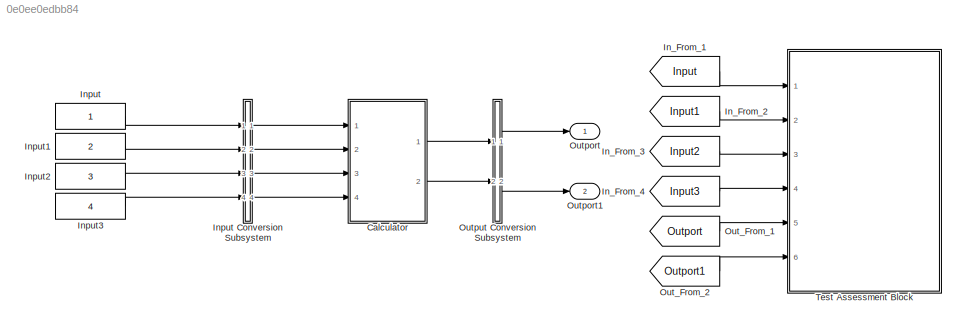
MODEL slx_0e0ee0edbb84
KIND model
BLOCK [ModelReference] Calculator
  ModelNameDialog = Calculator
  ModelReferenceVersion = 1.5
  Ports = [4, 2]
BLOCK [From] In_From_1
  GotoTag = Input
  TagVisibility = global
BLOCK [From] In_From_2
  GotoTag = Input1
  TagVisibility = global
BLOCK [From] In_From_3
  GotoTag = Input2
  TagVisibility = global
BLOCK [From] In_From_4
  GotoTag = Input3
  TagVisibility = global
BLOCK [Constant] Input
  OutDataTypeStr = double
  SampleTime = 0.01
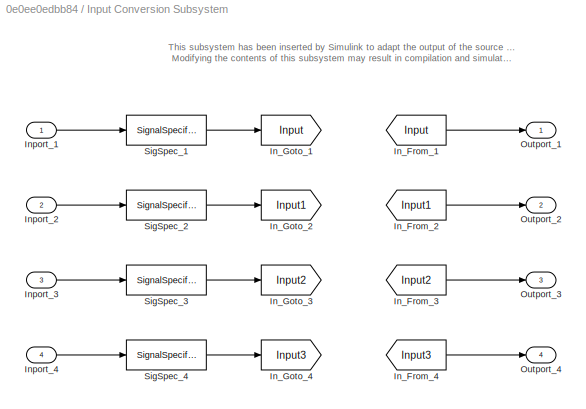
BLOCK [SubSystem] Input Conversion Subsystem
  AttributesFormatString = %<Description>
  Description = Signal spec.\nand routing
  Permissions = ReadOnly
  PermitHierarchicalResolution = ExplicitOnly
  Ports = [4, 4]
  RequestExecContextInheritance = off
  Tag = __SLT_ICS__
  UserDataPersistent = on
BLOCK [From] Input Conversion Subsystem/In_From_1
  GotoTag = Input
  TagVisibility = global
BLOCK [From] Input Conversion Subsystem/In_From_2
  GotoTag = Input1
  TagVisibility = global
BLOCK [From] Input Conversion Subsystem/In_From_3
  GotoTag = Input2
  TagVisibility = global
BLOCK [From] Input Conversion Subsystem/In_From_4
  GotoTag = Input3
  TagVisibility = global
BLOCK [Goto] Input Conversion Subsystem/In_Goto_1
  GotoTag = Input
  TagVisibility = global
BLOCK [Goto] Input Conversion Subsystem/In_Goto_2
  GotoTag = Input1
  TagVisibility = global
BLOCK [Goto] Input Conversion Subsystem/In_Goto_3
  GotoTag = Input2
  TagVisibility = global
BLOCK [Goto] Input Conversion Subsystem/In_Goto_4
  GotoTag = Input3
  TagVisibility = global
BLOCK [Inport] Input Conversion Subsystem/Inport_1
BLOCK [Inport] Input Conversion Subsystem/Inport_2
  Port = 2
BLOCK [Inport] Input Conversion Subsystem/Inport_3
  Port = 3
BLOCK [Inport] Input Conversion Subsystem/Inport_4
  Port = 4
BLOCK [Outport] Input Conversion Subsystem/Outport_1
BLOCK [Outport] Input Conversion Subsystem/Outport_2
  Port = 2
BLOCK [Outport] Input Conversion Subsystem/Outport_3
  Port = 3
BLOCK [Outport] Input Conversion Subsystem/Outport_4
  Port = 4
BLOCK [SignalSpecification] Input Conversion Subsystem/SigSpec_1
  Dimensions = [1]
  OutDataTypeStr = double
  SampleTime = 0.01
  SignalType = real
  VarSizeSig = No
BLOCK [SignalSpecification] Input Conversion Subsystem/SigSpec_2
  Dimensions = [1]
  OutDataTypeStr = double
  SampleTime = 0.01
  SignalType = real
  VarSizeSig = No
BLOCK [SignalSpecification] Input Conversion Subsystem/SigSpec_3
  Dimensions = [1]
  OutDataTypeStr = double
  SampleTime = 0.01
  SignalType = real
  VarSizeSig = No
BLOCK [SignalSpecification] Input Conversion Subsystem/SigSpec_4
  Dimensions = [1]
  OutDataTypeStr = double
  SampleTime = 0.01
  SignalType = real
  VarSizeSig = No
BLOCK [Constant] Input1
  OutDataTypeStr = double
  SampleTime = 0.01
  Value = 2
BLOCK [Constant] Input2
  OutDataTypeStr = double
  SampleTime = 0.01
  Value = 3
BLOCK [Constant] Input3
  OutDataTypeStr = double
  SampleTime = 0.01
  Value = 4
BLOCK [From] Out_From_1
  GotoTag = Outport
  TagVisibility = global
BLOCK [From] Out_From_2
  GotoTag = Outport1
  TagVisibility = global
BLOCK [Outport] Outport
BLOCK [Outport] Outport1
  Port = 2
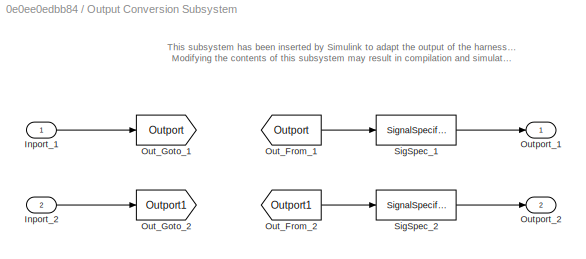
BLOCK [SubSystem] Output Conversion Subsystem
  AttributesFormatString = %<Description>
  Description = Signal spec.\nand routing
  Permissions = ReadOnly
  PermitHierarchicalResolution = ExplicitOnly
  Ports = [2, 2]
  RequestExecContextInheritance = off
  Tag = __SLT_OCS__
  UserDataPersistent = on
BLOCK [Inport] Output Conversion Subsystem/Inport_1
BLOCK [Inport] Output Conversion Subsystem/Inport_2
  Port = 2
BLOCK [From] Output Conversion Subsystem/Out_From_1
  GotoTag = Outport
  TagVisibility = global
BLOCK [From] Output Conversion Subsystem/Out_From_2
  GotoTag = Outport1
  TagVisibility = global
BLOCK [Goto] Output Conversion Subsystem/Out_Goto_1
  GotoTag = Outport
  TagVisibility = global
BLOCK [Goto] Output Conversion Subsystem/Out_Goto_2
  GotoTag = Outport1
  TagVisibility = global
BLOCK [Outport] Output Conversion Subsystem/Outport_1
BLOCK [Outport] Output Conversion Subsystem/Outport_2
  Port = 2
BLOCK [SignalSpecification] Output Conversion Subsystem/SigSpec_1
  Dimensions = [1]
  OutDataTypeStr = double
  SampleTime = 0.01
  SignalType = real
  VarSizeSig = No
BLOCK [SignalSpecification] Output Conversion Subsystem/SigSpec_2
  Dimensions = [1]
  OutDataTypeStr = double
  SampleTime = 0.01
  SignalType = real
  VarSizeSig = No
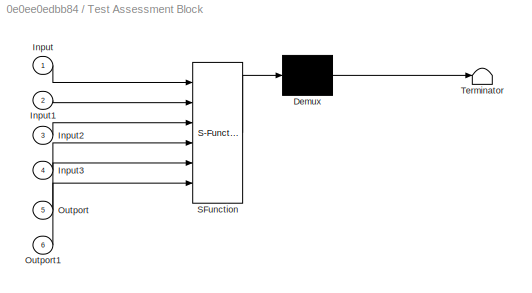
BLOCK [SubSystem] Test Assessment Block
  ErrorFcn = Stateflow.Translate.translate
  PermitHierarchicalResolution = ExplicitOnly
  Ports = [6]
  RequestExecContextInheritance = off
  SFBlockType = Test Sequence
  ShowPortLabels = none
  Tag = __SLT_ASMT__
  TreatAsAtomicUnit = on
BLOCK [Demux] Test Assessment Block/ Demux 
  Outputs = 1
  Ports = [1, 1]
BLOCK [S-Function] Test Assessment Block/ SFunction 
  EnableBusSupport = on
  FunctionName = sf_sfun
  PortCounts = [6 1]
  Ports = [6, 1]
  SFcnIsStateOwnerBlock = off
  SFunctionDeploymentMode = off
  Tag = Stateflow S-Function 1
BLOCK [Terminator] Test Assessment Block/ Terminator 
BLOCK [Inport] Test Assessment Block/Input
BLOCK [Inport] Test Assessment Block/Input1
  Port = 2
BLOCK [Inport] Test Assessment Block/Input2
  Port = 3
BLOCK [Inport] Test Assessment Block/Input3
  Port = 4
BLOCK [Inport] Test Assessment Block/Outport
  Port = 5
BLOCK [Inport] Test Assessment Block/Outport1
  Port = 6
ANNOTATION Input Conversion Subsystem: This subsystem has been inserted by Simulink to adapt the output of the source blocks to the interface required by the harnessed component. Modifying the contents of this subsystem may result in compilation and simulation failure.
ANNOTATION Output Conversion Subsystem: This subsystem has been inserted by Simulink to adapt the output of the harnessed component to the interface required by the sink blocks. Modifying the contents of this subsystem may result in compilation and simulation failure.
LINE Calculator:1 -> Output Conversion Subsystem:1
LINE Calculator:2 -> Output Conversion Subsystem:2
LINE In_From_1:1 -> Test Assessment Block:1
LINE In_From_2:1 -> Test Assessment Block:2
LINE In_From_3:1 -> Test Assessment Block:3
LINE In_From_4:1 -> Test Assessment Block:4
LINE Input Conversion Subsystem/In_From_1:1 -> Input Conversion Subsystem/Outport_1:1
LINE Input Conversion Subsystem/In_From_2:1 -> Input Conversion Subsystem/Outport_2:1
LINE Input Conversion Subsystem/In_From_3:1 -> Input Conversion Subsystem/Outport_3:1
LINE Input Conversion Subsystem/In_From_4:1 -> Input Conversion Subsystem/Outport_4:1
LINE Input Conversion Subsystem/Inport_1:1 -> Input Conversion Subsystem/SigSpec_1:1
LINE Input Conversion Subsystem/Inport_2:1 -> Input Conversion Subsystem/SigSpec_2:1
LINE Input Conversion Subsystem/Inport_3:1 -> Input Conversion Subsystem/SigSpec_3:1
LINE Input Conversion Subsystem/Inport_4:1 -> Input Conversion Subsystem/SigSpec_4:1
LINE Input Conversion Subsystem/SigSpec_1:1 -> Input Conversion Subsystem/In_Goto_1:1
LINE Input Conversion Subsystem/SigSpec_2:1 -> Input Conversion Subsystem/In_Goto_2:1
LINE Input Conversion Subsystem/SigSpec_3:1 -> Input Conversion Subsystem/In_Goto_3:1
LINE Input Conversion Subsystem/SigSpec_4:1 -> Input Conversion Subsystem/In_Goto_4:1
LINE Input Conversion Subsystem:1 -> Calculator:1
LINE Input Conversion Subsystem:2 -> Calculator:2
LINE Input Conversion Subsystem:3 -> Calculator:3
LINE Input Conversion Subsystem:4 -> Calculator:4
LINE Input1:1 -> Input Conversion Subsystem:2
LINE Input2:1 -> Input Conversion Subsystem:3
LINE Input3:1 -> Input Conversion Subsystem:4
LINE Input:1 -> Input Conversion Subsystem:1
LINE Out_From_1:1 -> Test Assessment Block:5
LINE Out_From_2:1 -> Test Assessment Block:6
LINE Output Conversion Subsystem/Inport_1:1 -> Output Conversion Subsystem/Out_Goto_1:1
LINE Output Conversion Subsystem/Inport_2:1 -> Output Conversion Subsystem/Out_Goto_2:1
LINE Output Conversion Subsystem/Out_From_1:1 -> Output Conversion Subsystem/SigSpec_1:1
LINE Output Conversion Subsystem/Out_From_2:1 -> Output Conversion Subsystem/SigSpec_2:1
LINE Output Conversion Subsystem/SigSpec_1:1 -> Output Conversion Subsystem/Outport_1:1
LINE Output Conversion Subsystem/SigSpec_2:1 -> Output Conversion Subsystem/Outport_2:1
LINE Output Conversion Subsystem:1 -> Outport:1
LINE Output Conversion Subsystem:2 -> Outport1:1
CHART Test Assessment Block states=1 transitions=1
  STATE_LABEL 'verify_statements\nverify(Outport1==3)\nverify(Outport == 12)'
